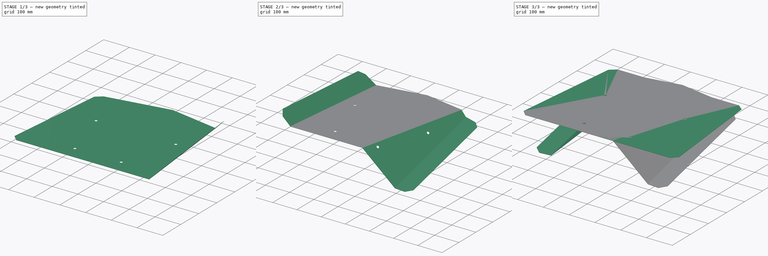
[diagram: build sequence overview — one tinted view per stage of 3, left to right]
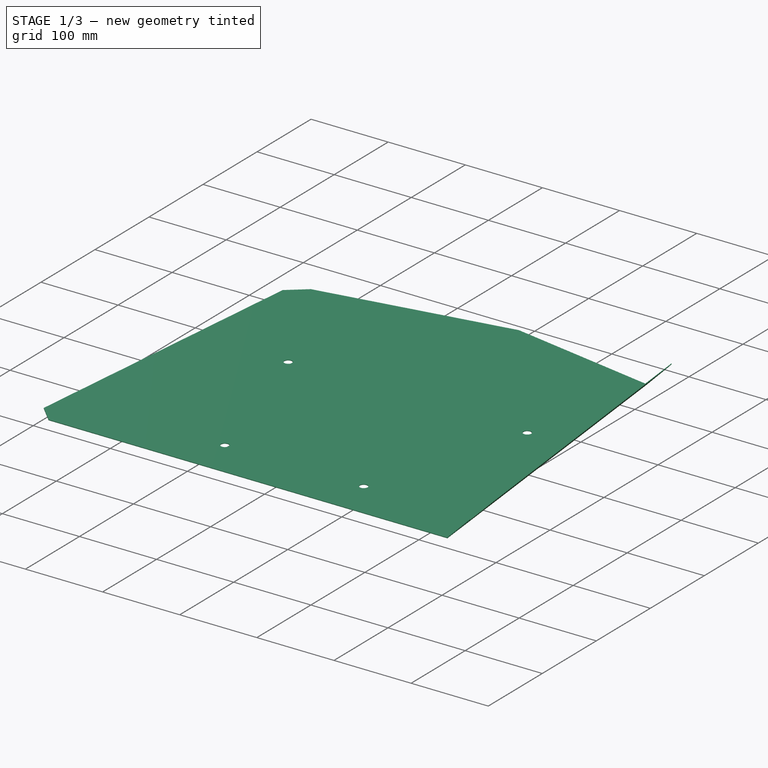
[diagram: stage 1 of 3 — iso view after this stage's code; geometry added in this stage tinted green]
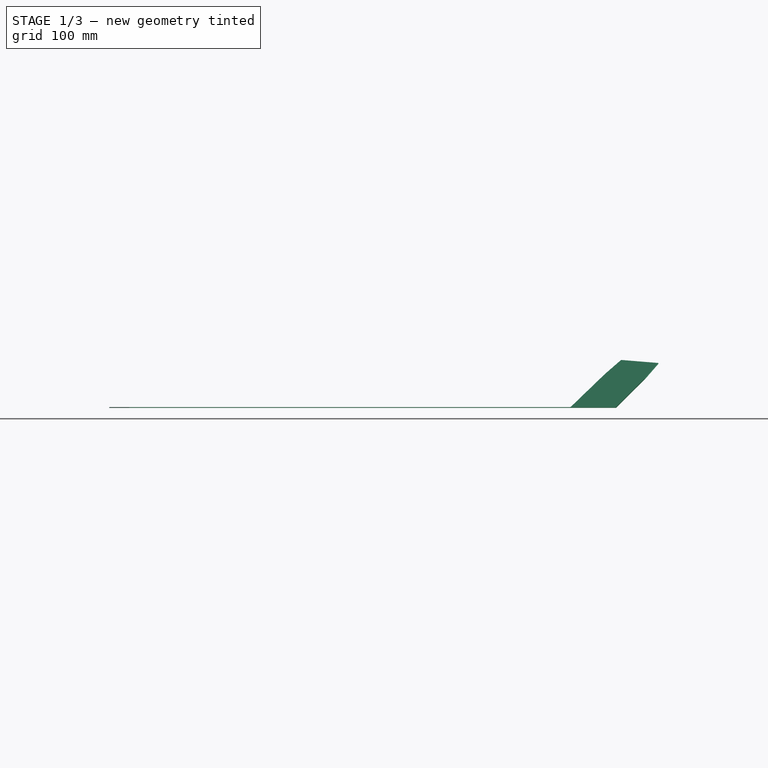
[diagram: stage 1 of 3 — front view after this stage's code; geometry added in this stage tinted green]
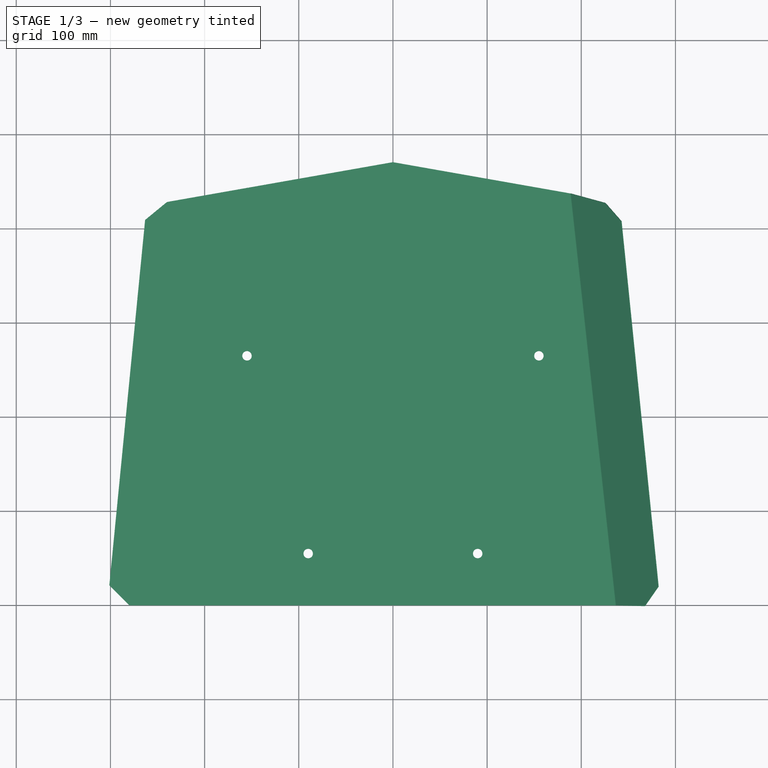
[diagram: stage 1 of 3 — top view after this stage's code; geometry added in this stage tinted green]
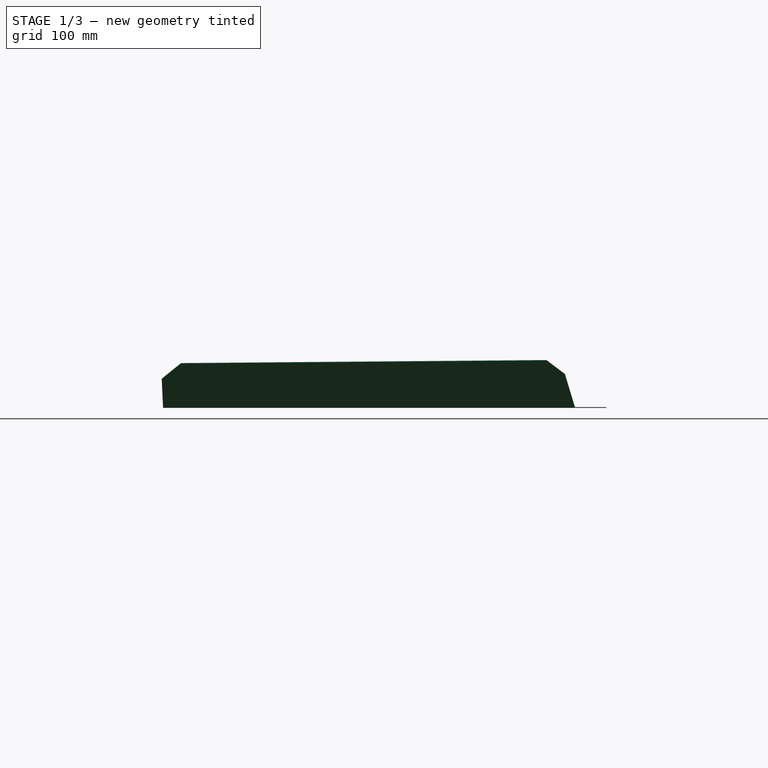
[diagram: stage 1 of 3 — right view after this stage's code; geometry added in this stage tinted green]
FCSTD DOCUMENT  (FreeCAD 0.20R29603 (Git))
Label: Guardplate
License: All rights reserved
LicenseURL: http://en.wikipedia.org/wiki/All_rights_reserved
objects: Sketcher::SketchObject×8, PartDesign::FeaturePython×4, PartDesign::Pad×2, PartDesign::Hole×2, PartDesign::Body×2, TechDraw::DrawSVGTemplate×1, TechDraw::DrawViewPart×1, TechDraw::DrawPage×1
note: 22 computed .brp shape members not serialized (recipe doc carries the construction recipe); baked Part::Feature solids carry a one-line shape summary decoded from their .brp

FEATURE [PartDesign::Body] Body  label="Shield001"
  Group = -> [Sketch,Pad,Sketch001,Hole]
  Origin = -> Origin
  Tip = -> Hole
FEATURE [Sketcher::SketchObject] Sketch002
  FullyConstrained = true
  MapMode = 5
  Support = -> [XY_Plane001]
  sketch-geometry (11):
    g0: LineSegment StartX=0 StartY=0 StartZ=0 EndX=280 EndY=0 EndZ=0
    g1: LineSegment StartX=280 StartY=0 StartZ=0 EndX=301.213 EndY=21.2132 EndZ=0
    g2: LineSegment StartX=301.213 StartY=21.2132 StartZ=0 EndX=263.181 EndY=409.354 EndZ=0
    g3: LineSegment StartX=263.181 StartY=409.354 StartZ=0 EndX=240 EndY=428.398 EndZ=0
    g4: LineSegment StartX=240 StartY=428.398 StartZ=0 EndX=0 EndY=470.716 EndZ=0
    g5: LineSegment StartX=0 StartY=470.716 StartZ=0 EndX=0 EndY=0 EndZ=0
    g6: LineSegment StartX=0 StartY=0 StartZ=0 EndX=-280 EndY=0 EndZ=0
    g7: LineSegment StartX=-280 StartY=0 StartZ=0 EndX=-301.213 EndY=21.2132 EndZ=0
    g8: LineSegment StartX=-301.213 StartY=21.2132 StartZ=0 EndX=-263.181 EndY=409.354 EndZ=0
    g9: LineSegment StartX=-263.181 StartY=409.354 StartZ=0 EndX=-240 EndY=428.398 EndZ=0
    g10: LineSegment StartX=-240 StartY=428.398 StartZ=0 EndX=0 EndY=470.716 EndZ=0
  constraints (31):
    c: Horizontal(g0)
    c: Coincident(g0,g1)
    c: Coincident(g1,g2)
    c: Coincident(g2,g3)
    c: Coincident(g3,g4)
    c: DistanceX(g0,g0) = 280
    c: Distance(g1) = 30
    c: Angle(g1,g0) = 2.35619
    c: Coincident(g5,g4)
    c: Coincident(g5,g0)
    c: Vertical(g5)
    c: Horizontal(g6)
    c: Coincident(g6,g7)
    c: Coincident(g7,g8)
    c: Coincident(g8,g9)
    c: Coincident(g9,g10)
    c: Angle(g7,g6) = -2.35619
    c: Equal(g10,g4)
    c: Equal(g1,g3)
    c: Equal(g3,g9)
    c: Equal(g9,g7)
    c: Equal(g2,g8)
    c: Distance(g2) = 390
    c: Coincident(g6,g0)
    c: Equal(g6,g0)
    c: Coincident(g0,g-1)
    c: Coincident(g10,g4)
    c: Angle(g8,g9) = 2.35619
    c: Angle(g3,g2) = 2.35619
    c: Angle(g10,g4) = 2.79253
    c: DistanceX(g4,g3) = 240
FEATURE [PartDesign::Pad] Pad001
  Direction = (0,0,1)
  Length = 0.8
  Length2 = 10
  Profile = -> Sketch002
  ReferenceAxis = -> Sketch002 [N_Axis]
  Type = 0
FEATURE [Sketcher::SketchObject] Sketch003
  FullyConstrained = false
  MapMode = 5
  Support = -> [XY_Plane001]
  sketch-geometry (8):
    g0: Circle CenterX=90 CenterY=55 CenterZ=0 NormalX=0 NormalY=0 NormalZ=1 AngleXU=0 Radius=9.8422
    g1: Circle CenterX=155 CenterY=265 CenterZ=0 NormalX=0 NormalY=0 NormalZ=1 AngleXU=0 Radius=11.8365
    g2: LineSegment StartX=90 StartY=55 StartZ=0 EndX=-90 EndY=55 EndZ=0
    g3: LineSegment StartX=155 StartY=265 StartZ=0 EndX=-155 EndY=265 EndZ=0
    g4: LineSegment StartX=155 StartY=265 StartZ=0 EndX=90 EndY=55 EndZ=0
    g5: LineSegment StartX=-90 StartY=55 StartZ=0 EndX=-155 EndY=265 EndZ=0
    g6: Circle CenterX=-155 CenterY=265 CenterZ=0 NormalX=0 NormalY=0 NormalZ=1 AngleXU=0 Radius=16.7124
    g7: Circle CenterX=-90 CenterY=55 CenterZ=0 NormalX=0 NormalY=0 NormalZ=1 AngleXU=0 Radius=10.9337
  constraints (14):
    c: DistanceY(g-1,g0) = 55
    c: DistanceX(g-1,g0) = 90
    c: DistanceX(g-1,g1) = 155
    c: DistanceY(g-1,g1) = 265
    c: Coincident(g2,g0)
    c: Coincident(g3,g1)
    c: Coincident(g4,g1)
    c: Coincident(g4,g0)
    c: Coincident(g5,g2)
    c: Coincident(g5,g3)
    c: Coincident(g6,g3)
    c: Coincident(g7,g2)
    c: Symmetric(g0,g7,g-2)
    c: Symmetric(g6,g1,g-2)
FEATURE [PartDesign::Hole] Hole001
  BaseFeature = -> Pad001
  CustomThreadClearance = 0
  Depth = 25
  DepthType = 0
  Diameter = 10
  DrillForDepth = false
  DrillPoint = 1
  DrillPointAngle = 118
  HoleCutCountersinkAngle = 90
  HoleCutCustomValues = false
  HoleCutDepth = 0
  HoleCutDiameter = 6.1
  HoleCutType = 0
  ModelThread = false
  Profile = -> Sketch003
  Reversed = true
  Tapered = false
  TaperedAngle = 90
  ThreadClass = 0
  ThreadDepth = 25
  ThreadDepthType = 0
  ThreadDirection = 0
  ThreadFit = 2
  ThreadSize = 16
  ThreadType = 1
  Threaded = false
  UseCustomThreadClearance = false
FEATURE [Sketcher::SketchObject] Sketch006
  ExternalGeometry = -> [Sketch002]
  FullyConstrained = true
  MapMode = 5
  Support = -> [XY_Plane001]
  sketch-geometry (1):
    g0: LineSegment StartX=188.181 StartY=437.535 StartZ=0 EndX=236.213 EndY=0 EndZ=0
  constraints (4):
    c: PointOnObject(g0,g-1)
    c: DistanceX(g0,g-3) = 65
    c: PointOnObject(g0,g-4)
    c: DistanceX(g0,g-3) = 75
FEATURE [Sketcher::SketchObject] Sketch007
  ExternalGeometry = -> [Sketch002]
  FullyConstrained = true
  MapMode = 5
  Support = -> [XY_Plane001]
  sketch-geometry (1):
    g0: LineSegment StartX=160 StartY=442.504 StartZ=0 EndX=60 EndY=0 EndZ=0
  constraints (4):
    c: PointOnObject(g0,g-1)
    c: PointOnObject(g0,g-3)
    c: DistanceX(g-3,g0) = 160
    c: DistanceX(g-4,g0) = 60
FEATURE [PartDesign::FeaturePython] Fold  label="FoldAussen001"  # WARN: FeaturePython — macro-defined, semantics opaque (R4)
  BaseFeature = -> Hole001
  BendLine = -> Sketch006
  Position = 0
  angle = 45
  baseObject = -> Hole001 [Face4]
  invert = true
  invertbend = false
  kfactor = 0.5
  radius = 1
  unfold = false
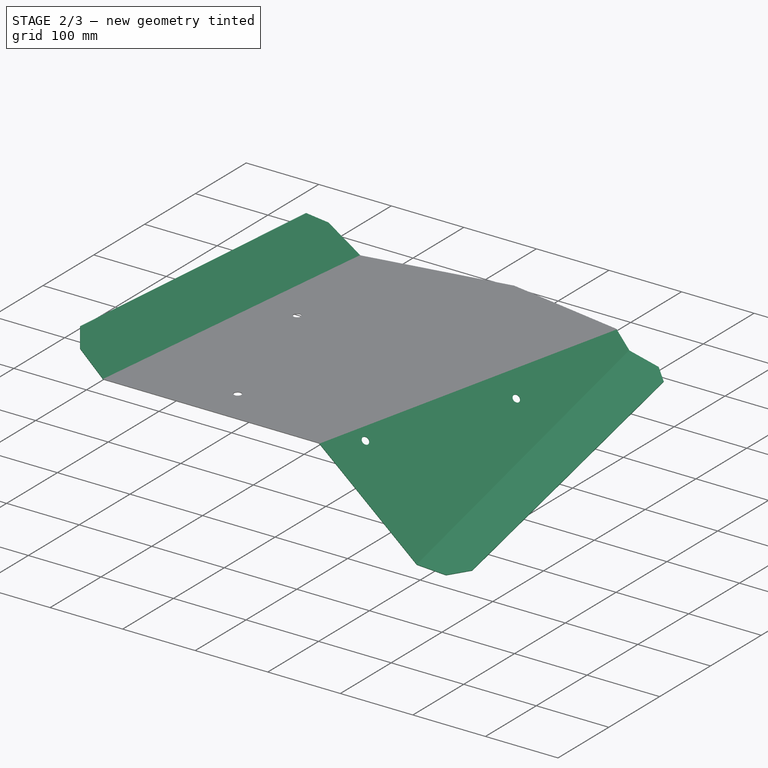
[diagram: stage 2 of 3 — iso view after this stage's code; geometry added in this stage tinted green]
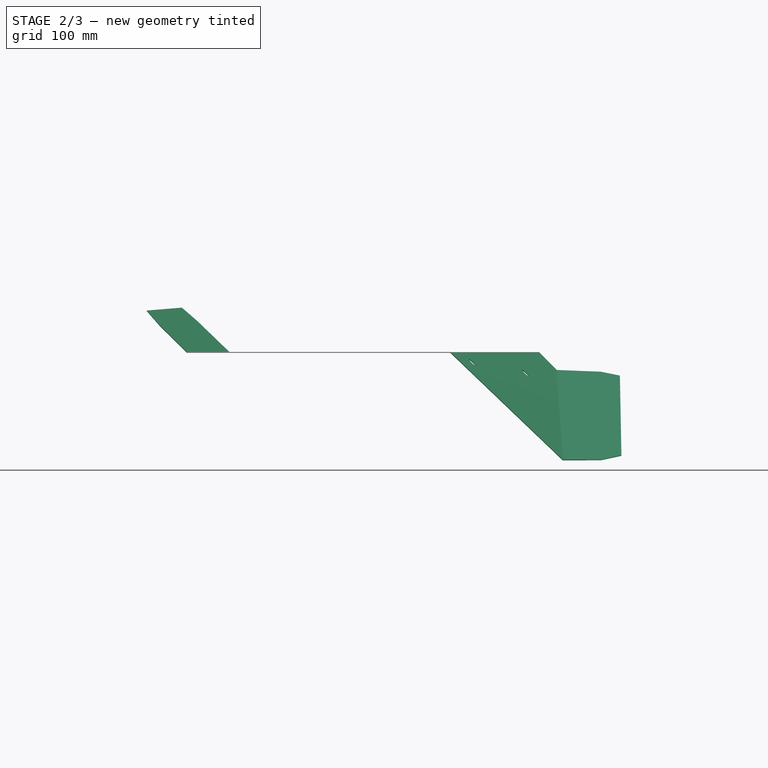
[diagram: stage 2 of 3 — front view after this stage's code; geometry added in this stage tinted green]
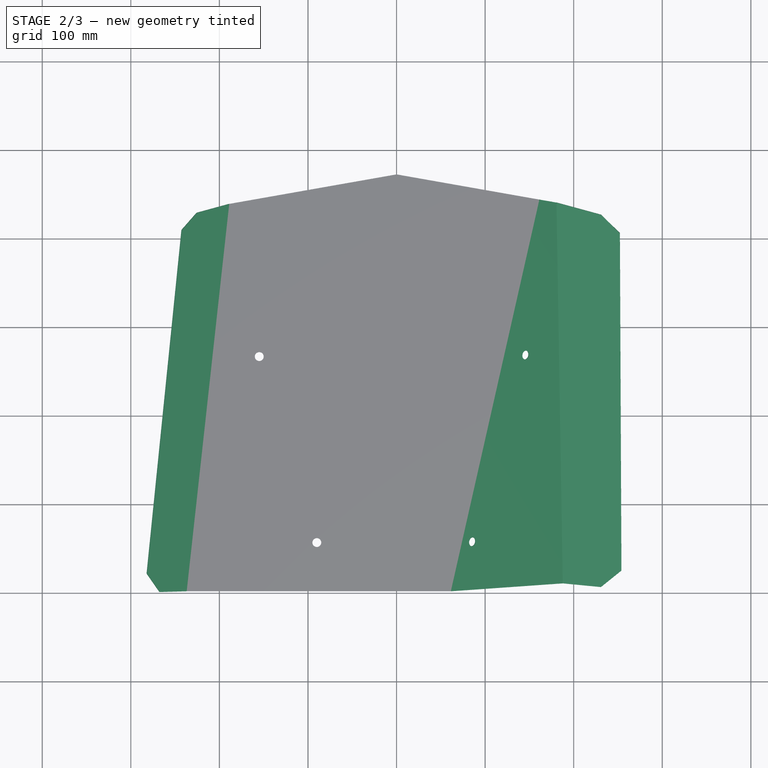
[diagram: stage 2 of 3 — top view after this stage's code; geometry added in this stage tinted green]
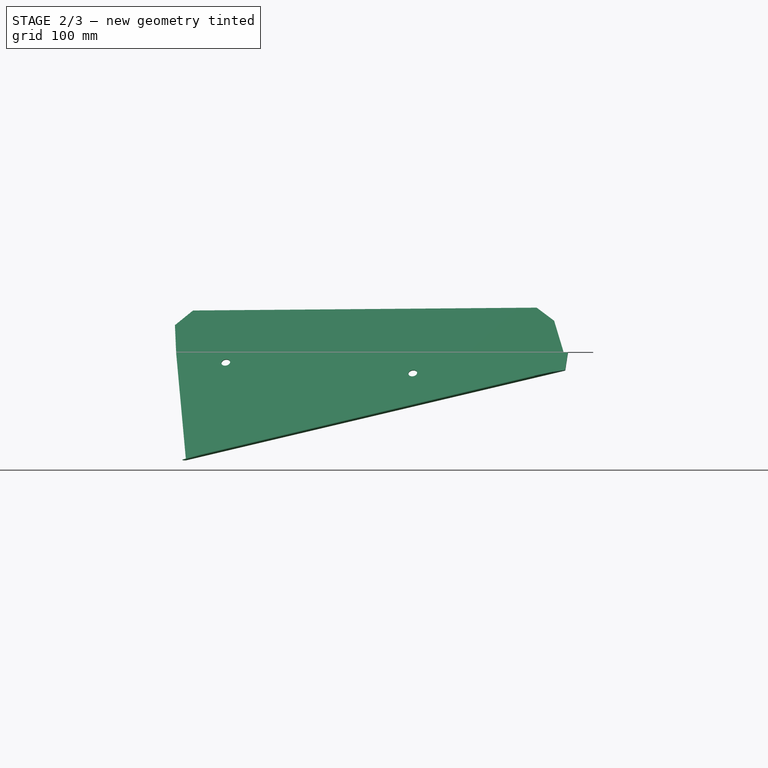
[diagram: stage 2 of 3 — right view after this stage's code; geometry added in this stage tinted green]
FEATURE [PartDesign::FeaturePython] Fold001  label="FoldInnen001"  # WARN: FeaturePython — macro-defined, semantics opaque (R4)
  BaseFeature = -> Fold
  BendLine = -> Sketch007
  Position = 0
  angle = 45
  baseObject = -> Fold [Face2]
  invert = false
  invertbend = true
  kfactor = 0.5
  radius = 1
  unfold = false
FEATURE [Sketcher::SketchObject] Sketch008
  ExternalGeometry = -> [Sketch002]
  FullyConstrained = true
  MapMode = 5
  Support = -> [XY_Plane001]
  sketch-geometry (1):
    g0: LineSegment StartX=-188.181 StartY=437.535 StartZ=0 EndX=-236.213 EndY=0 EndZ=0
  constraints (4):
    c: PointOnObject(g0,g-3)
    c: PointOnObject(g0,g-5)
    c: DistanceX(g-4,g0) = 65
    c: DistanceX(g-4,g0) = 75
FEATURE [PartDesign::FeaturePython] Fold002  # WARN: FeaturePython — macro-defined, semantics opaque (R4)
  BaseFeature = -> Fold001
  BendLine = -> Sketch008
  Position = 0
  angle = 45
  baseObject = -> Fold001 [Face2]
  invert = true
  invertbend = false
  kfactor = 0.5
  radius = 1
  unfold = false
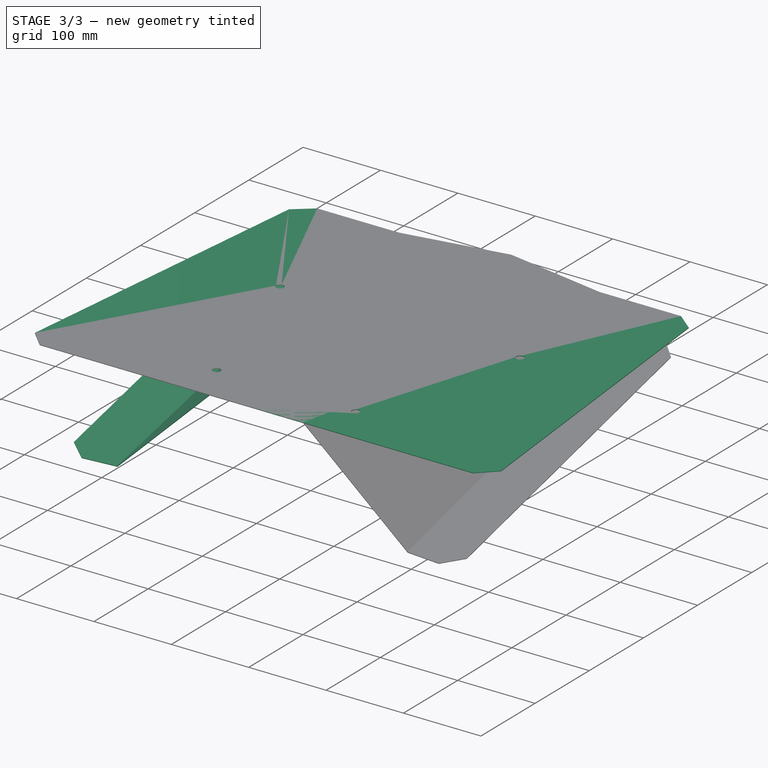
[diagram: stage 3 of 3 — iso view after this stage's code; geometry added in this stage tinted green]
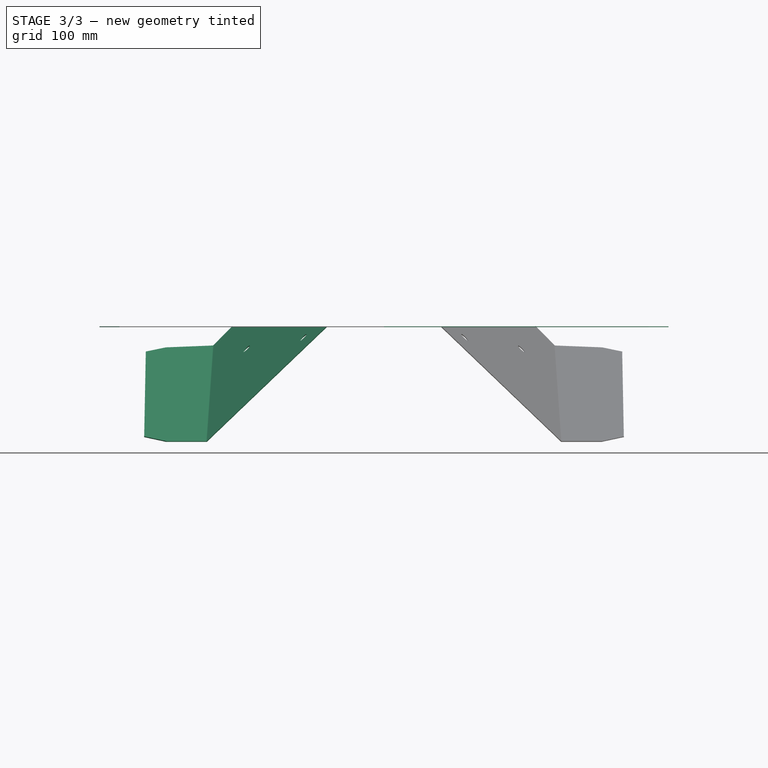
[diagram: stage 3 of 3 — front view after this stage's code; geometry added in this stage tinted green]
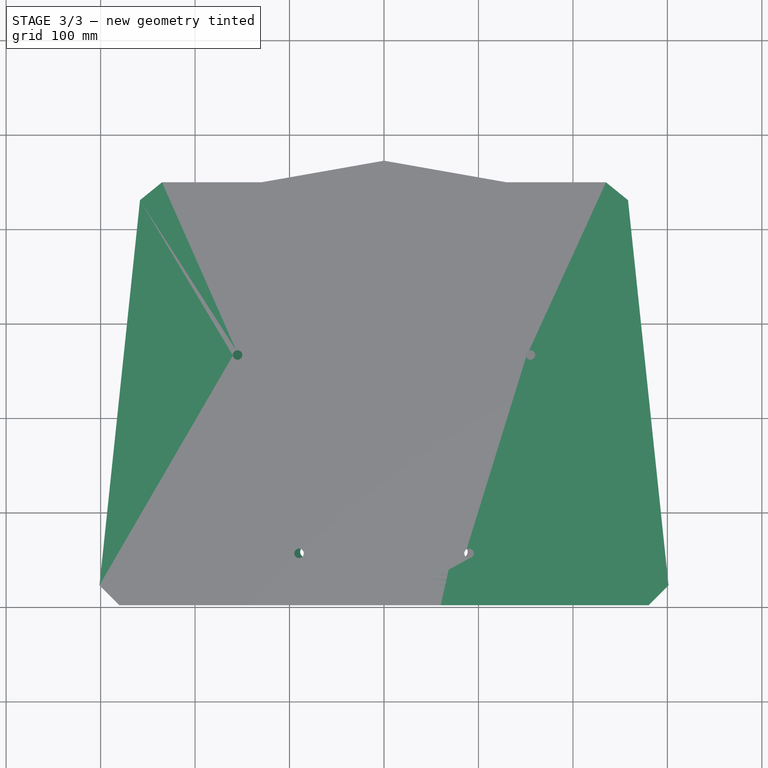
[diagram: stage 3 of 3 — top view after this stage's code; geometry added in this stage tinted green]
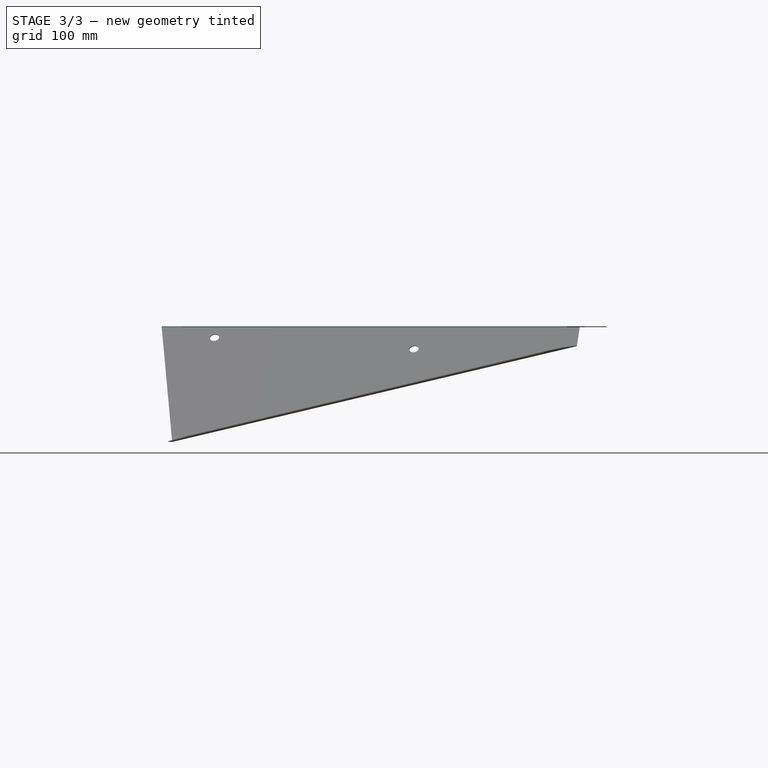
[diagram: stage 3 of 3 — right view after this stage's code; geometry added in this stage tinted green]
FEATURE [Sketcher::SketchObject] Sketch
  FullyConstrained = true
  MapMode = 5
  Support = -> [XY_Plane]
  sketch-geometry (11):
    g0: LineSegment StartX=0 StartY=0 StartZ=0 EndX=280 EndY=0 EndZ=0
    g1: LineSegment StartX=280 StartY=0 StartZ=0 EndX=301.213 EndY=21.2132 EndZ=0
    g2: LineSegment StartX=301.213 StartY=21.2132 StartZ=0 EndX=258.316 EndY=428.963 EndZ=0
    g3: LineSegment StartX=258.316 StartY=428.963 StartZ=0 EndX=235 EndY=447.84 EndZ=0
    g4: LineSegment StartX=235 StartY=447.84 StartZ=0 EndX=0 EndY=447.84 EndZ=0
    g5: LineSegment StartX=0 StartY=447.84 StartZ=0 EndX=0 EndY=0 EndZ=0
    g6: LineSegment StartX=0 StartY=0 StartZ=0 EndX=-280 EndY=0 EndZ=0
    g7: LineSegment StartX=-280 StartY=0 StartZ=0 EndX=-301.213 EndY=21.2132 EndZ=0
    g8: LineSegment StartX=-301.213 StartY=21.2132 StartZ=0 EndX=-258.316 EndY=428.963 EndZ=0
    g9: LineSegment StartX=-258.316 StartY=428.963 StartZ=0 EndX=-235 EndY=447.84 EndZ=0
    g10: LineSegment StartX=-235 StartY=447.84 StartZ=0 EndX=0 EndY=447.84 EndZ=0
  constraints (31):
    c: Horizontal(g0)
    c: Coincident(g0,g1)
    c: Coincident(g1,g2)
    c: Coincident(g2,g3)
    c: Coincident(g3,g4)
    c: DistanceX(g0,g0) = 280
    c: Distance(g1) = 30
    c: Angle(g1,g0) = 2.35619
    c: Coincident(g5,g4)
    c: Coincident(g5,g0)
    c: Vertical(g5)
    c: Horizontal(g6)
    c: Coincident(g6,g7)
    c: Coincident(g7,g8)
    c: Coincident(g8,g9)
    c: Coincident(g9,g10)
    c: Angle(g7,g6) = -2.35619
    c: Equal(g10,g4)
    c: Equal(g1,g3)
    c: Equal(g3,g9)
    c: Equal(g9,g7)
    c: Equal(g2,g8)
    c: Distance(g2) = 410
    c: Coincident(g6,g0)
    c: Equal(g6,g0)
    c: Coincident(g0,g-1)
    c: Coincident(g10,g4)
    c: DistanceX(g9,g3) = 470
    c: Angle(g8,g9) = 2.35619
    c: Angle(g3,g2) = 2.35619
    c: Horizontal(g10)
FEATURE [PartDesign::Pad] Pad
  Direction = (0,0,1)
  Length = 0.8
  Length2 = 10
  Profile = -> Sketch
  ReferenceAxis = -> Sketch [N_Axis]
  Type = 0
FEATURE [Sketcher::SketchObject] Sketch001
  FullyConstrained = false
  MapMode = 5
  Support = -> [XY_Plane]
  sketch-geometry (8):
    g0: Circle CenterX=90 CenterY=55 CenterZ=0 NormalX=0 NormalY=0 NormalZ=1 AngleXU=0 Radius=9.8422
    g1: Circle CenterX=155 CenterY=265 CenterZ=0 NormalX=0 NormalY=0 NormalZ=1 AngleXU=0 Radius=11.8365
    g2: LineSegment StartX=90 StartY=55 StartZ=0 EndX=-90 EndY=55 EndZ=0
    g3: LineSegment StartX=155 StartY=265 StartZ=0 EndX=-155 EndY=265 EndZ=0
    g4: LineSegment StartX=155 StartY=265 StartZ=0 EndX=90 EndY=55 EndZ=0
    g5: LineSegment StartX=-90 StartY=55 StartZ=0 EndX=-155 EndY=265 EndZ=0
    g6: Circle CenterX=-155 CenterY=265 CenterZ=0 NormalX=0 NormalY=0 NormalZ=1 AngleXU=0 Radius=16.7124
    g7: Circle CenterX=-90 CenterY=55 CenterZ=0 NormalX=0 NormalY=0 NormalZ=1 AngleXU=0 Radius=10.9337
  constraints (14):
    c: DistanceY(g-1,g0) = 55
    c: DistanceX(g-1,g0) = 90
    c: DistanceX(g-1,g1) = 155
    c: DistanceY(g-1,g1) = 265
    c: Coincident(g2,g0)
    c: Coincident(g3,g1)
    c: Coincident(g4,g1)
    c: Coincident(g4,g0)
    c: Coincident(g5,g2)
    c: Coincident(g5,g3)
    c: Coincident(g6,g3)
    c: Coincident(g7,g2)
    c: Symmetric(g0,g7,g-2)
    c: Symmetric(g6,g1,g-2)
FEATURE [PartDesign::Hole] Hole
  BaseFeature = -> Pad
  CustomThreadClearance = 0
  Depth = 25
  DepthType = 0
  Diameter = 10
  DrillForDepth = false
  DrillPoint = 1
  DrillPointAngle = 118
  HoleCutCountersinkAngle = 90
  HoleCutCustomValues = false
  HoleCutDepth = 0
  HoleCutDiameter = 6.1
  HoleCutType = 0
  ModelThread = false
  Profile = -> Sketch001
  Reversed = true
  Tapered = false
  TaperedAngle = 90
  ThreadClass = 0
  ThreadDepth = 25
  ThreadDepthType = 0
  ThreadDirection = 0
  ThreadFit = 2
  ThreadSize = 16
  ThreadType = 1
  Threaded = false
  UseCustomThreadClearance = false
FEATURE [Sketcher::SketchObject] Sketch009
  ExternalGeometry = -> [Sketch002]
  FullyConstrained = true
  MapMode = 5
  Support = -> [XY_Plane001]
  sketch-geometry (1):
    g0: LineSegment StartX=-160 StartY=442.504 StartZ=0 EndX=-60 EndY=0 EndZ=0
  constraints (4):
    c: PointOnObject(g0,g-4)
    c: PointOnObject(g0,g-3)
    c: DistanceX(g0,g-4) = 160
    c: DistanceX(g0,g-3) = 60
FEATURE [PartDesign::FeaturePython] Fold003  # WARN: FeaturePython — macro-defined, semantics opaque (R4)
  BaseFeature = -> Fold002
  BendLine = -> Sketch009
  Position = 0
  angle = 45
  baseObject = -> Fold002 [Face2]
  invert = false
  invertbend = true
  kfactor = 0.5
  radius = 1
  unfold = false
FEATURE [PartDesign::Body] Body001  label="Shield002"
  Group = -> [Sketch002,Pad001,Sketch003,Hole001,Sketch006,Sketch007,Fold,Fold001,Sketch008,Fold002,Sketch009,Fold003]
  Origin = -> Origin001
  Tip = -> Fold003
FEATURE [TechDraw::DrawSVGTemplate] Template
  EditableTexts = APPROVER_NAME=APPROVER NAME; AUTHOR_NAME=AUTHOR NAME; DATE=YYYY-MM-DD; DN=DN; DOCUMENT_TYPE=Mechanical assembly drawing; OWNER_NAME=OWNER NAME; PM=PM; PN=PN; REVISION=REV A; RIGHTS=(R) DO NOT DUPLICATE THIS DRAWING TO THIRD PARTIES WITHOUT OWNER'S PERMISSION !; SCALE=M x:x; SHEET=99 of 99; SIZE=A1; TITLELINE-1=FreeCAD; TOLERANCE=+/- ?
  Height = 841
  Orientation = 1
  Width = 1189
FEATURE [TechDraw::DrawViewPart] View
  CoarseView = false
  Direction = (0,0,1)
  Focus = 100
  HardHidden = false
  IsoCount = 0
  IsoHidden = false
  IsoVisible = false
  LockPosition = false
  Perspective = false
  Rotation = 0
  ScaleType = 0
  SeamHidden = false
  SeamVisible = true
  SmoothHidden = false
  SmoothVisible = true
  Source = -> [Hole001]
  X = 594.5
  XDirection = (1,0,0)
  Y = 420.5
FEATURE [TechDraw::DrawPage] Page
  KeepUpdated = true
  NextBalloonIndex = 1
  ProjectionType = 0
  Template = -> Template
  Views = -> [View]
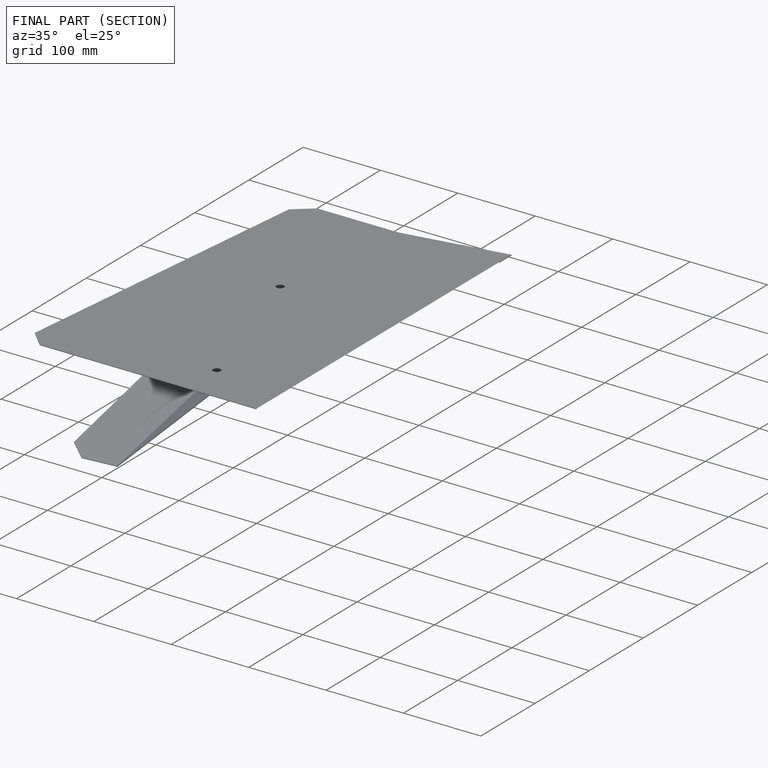
[diagram: finished part — half-section view (interior)]
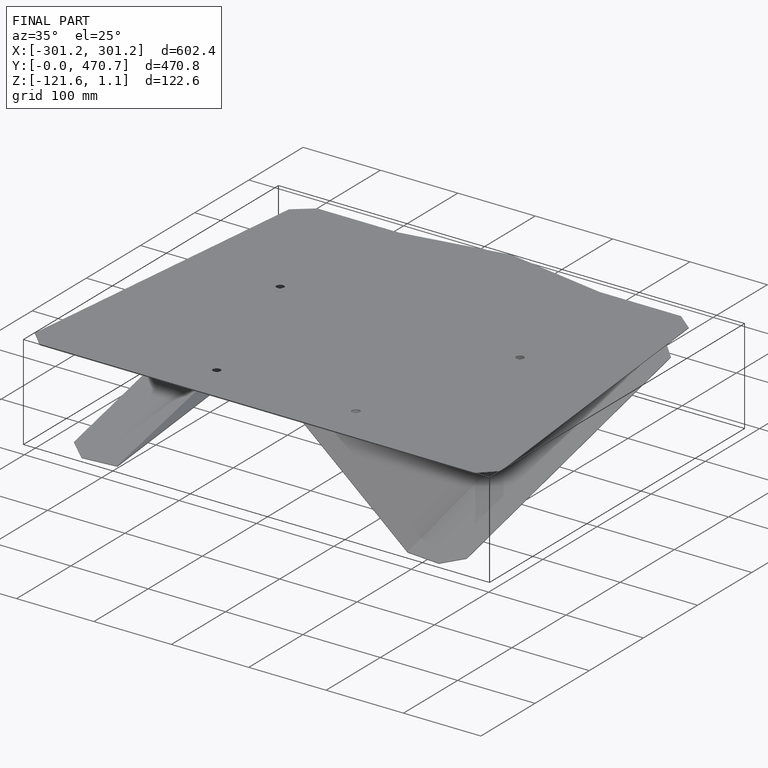
[diagram: finished part — iso view with bounding-box wireframe]
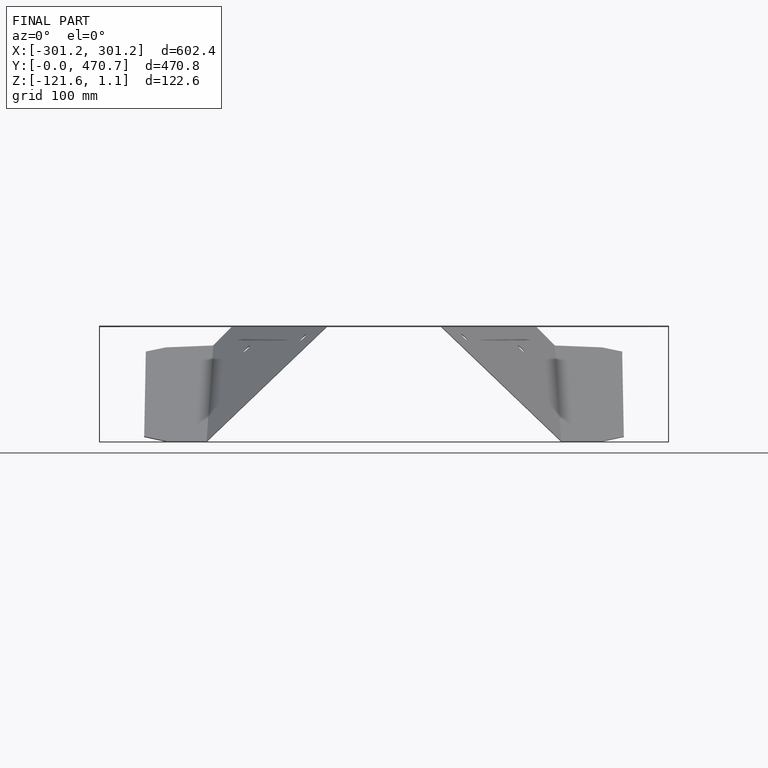
[diagram: finished part — front view with bounding-box wireframe]
